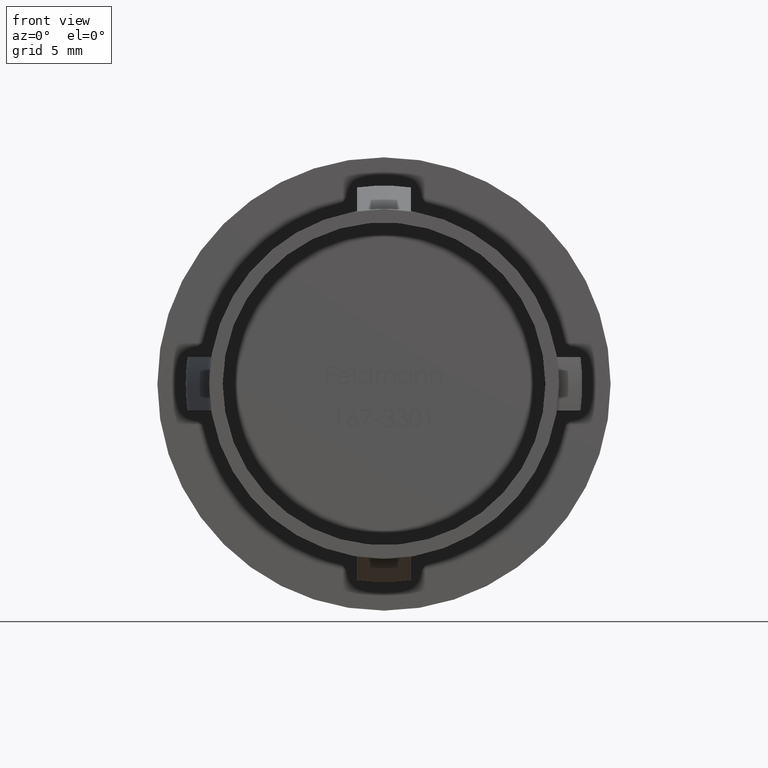
[diagram: clean part render]
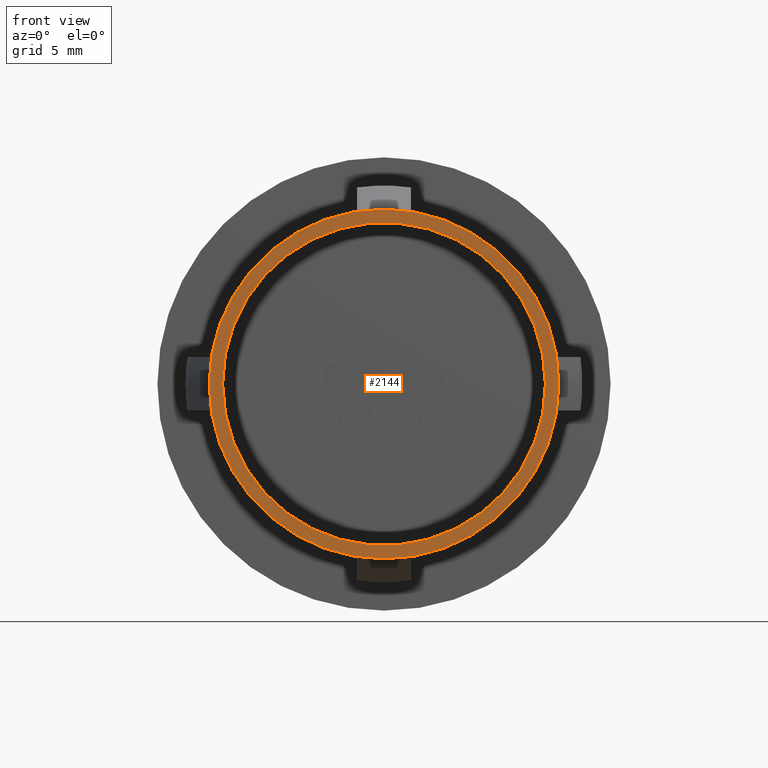
[diagram: same view with one face highlighted and labeled with its STEP entity id]
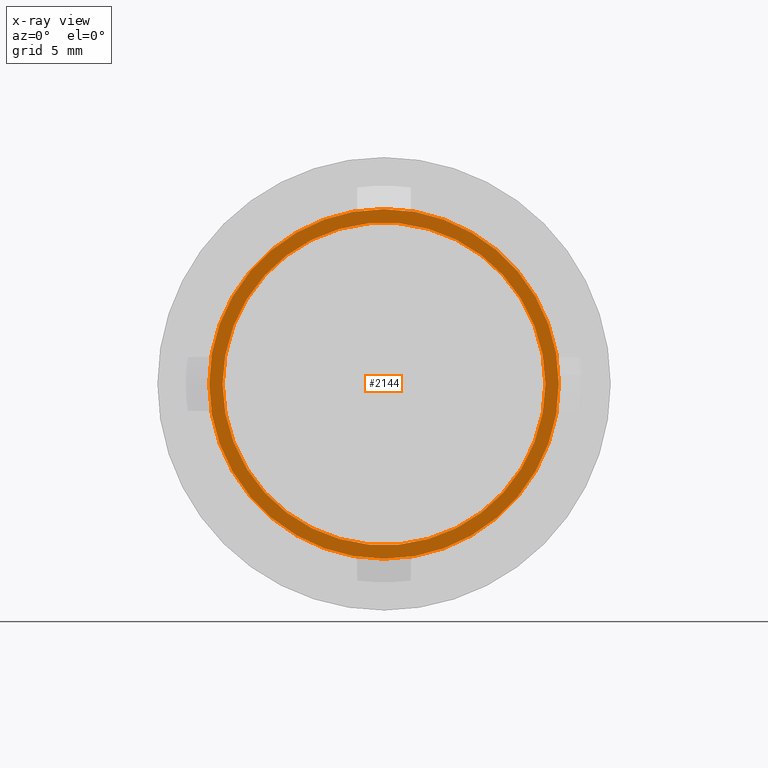
[diagram: x-ray of the same camera — body ghosted, the highlighted face saturated]
A machine part, front view. The second image highlights one B-rep face of the part: STEP entity #2144.
The next image is the same camera in x-ray: the body ghosted, the highlighted face saturated — about 0% of this face is hidden behind the body in this view.
In plain terms, the highlighted planar face has unit normal (0, 1, -0).
Its self-contained STEP definition (entity closure, byte-faithful):
#1415 = CIRCLE ( 'NONE', #8683, 12.00000000000000200 ) ;
#1520 = FACE_BOUND ( 'NONE', #13751, .T. ) ;
#2144 = ADVANCED_FACE ( 'NONE', ( #1520, #14228 ), #11221, .F. ) ;
#2170 = ORIENTED_EDGE ( 'NONE', *, *, #3285, .T. ) ;
#2950 = CIRCLE ( 'NONE', #12013, 13.00000000000000500 ) ;
#2972 = EDGE_CURVE ( 'NONE', #8384, #11530, #1415, .T. ) ;
#2994 = VERTEX_POINT ( 'NONE', #14287 ) ;
#3285 = EDGE_CURVE ( 'NONE', #11530, #8384, #4744, .T. ) ;
#3843 = CIRCLE ( 'NONE', #12502, 13.00000000000000500 ) ;
#4030 = ORIENTED_EDGE ( 'NONE', *, *, #8548, .F. ) ;
#4650 = CARTESIAN_POINT ( 'NONE',  ( -12.00000000000000400, 8.817456953860946200E-016, 0.0000000000000000000 ) ) ;
#4744 = CIRCLE ( 'NONE', #12193, 12.00000000000000200 ) ;
#5148 = DIRECTION ( 'NONE',  ( 7.347880794884120200E-017, 1.000000000000000000, -0.0000000000000000000 ) ) ;
#5301 = CARTESIAN_POINT ( 'NONE',  ( -1.557750728515433000E-015, 0.0000000000000000000, 0.0000000000000000000 ) ) ;
#5651 = DIRECTION ( 'NONE',  ( -1.000000000000000000, 7.347880794884120200E-017, 0.0000000000000000000 ) ) ;
#6242 = DIRECTION ( 'NONE',  ( -1.000000000000000000, 7.347880794884120200E-017, 0.0000000000000000000 ) ) ;
#7142 = CARTESIAN_POINT ( 'NONE',  ( 12.00000000000000000, -8.817456953860946200E-016, 1.469576158976823900E-015 ) ) ;
#7279 = CARTESIAN_POINT ( 'NONE',  ( -1.557750728515433000E-015, 0.0000000000000000000, 0.0000000000000000000 ) ) ;
#7624 = VERTEX_POINT ( 'NONE', #12892 ) ;
#7735 = DIRECTION ( 'NONE',  ( 7.347880794884120200E-017, 1.000000000000000000, -0.0000000000000000000 ) ) ;
#8384 = VERTEX_POINT ( 'NONE', #7142 ) ;
#8408 = DIRECTION ( 'NONE',  ( 7.347880794884120200E-017, 1.000000000000000000, -0.0000000000000000000 ) ) ;
#8548 = EDGE_CURVE ( 'NONE', #7624, #2994, #3843, .T. ) ;
#8683 = AXIS2_PLACEMENT_3D ( 'NONE', #5301, #7735, #9744 ) ;
#9079 = DIRECTION ( 'NONE',  ( -1.000000000000000000, 7.347880794884120200E-017, 0.0000000000000000000 ) ) ;
#9571 = EDGE_CURVE ( 'NONE', #2994, #7624, #2950, .T. ) ;
#9744 = DIRECTION ( 'NONE',  ( -1.000000000000000000, 7.347880794884120200E-017, 0.0000000000000000000 ) ) ;
#10121 = CARTESIAN_POINT ( 'NONE',  ( -1.557750728515433000E-015, 0.0000000000000000000, 0.0000000000000000000 ) ) ;
#10137 = DIRECTION ( 'NONE',  ( 7.347880794884120200E-017, 1.000000000000000000, -0.0000000000000000000 ) ) ;
#10655 = EDGE_LOOP ( 'NONE', ( #12710, #4030 ) ) ;
#10828 = CARTESIAN_POINT ( 'NONE',  ( -1.557750728515433000E-015, 0.0000000000000000000, 0.0000000000000000000 ) ) ;
#11221 = PLANE ( 'NONE',  #11898 ) ;
#11254 = DIRECTION ( 'NONE',  ( 7.347880794884120200E-017, 1.000000000000000000, -0.0000000000000000000 ) ) ;
#11530 = VERTEX_POINT ( 'NONE', #4650 ) ;
#11898 = AXIS2_PLACEMENT_3D ( 'NONE', #13488, #10137, #5651 ) ;
#12013 = AXIS2_PLACEMENT_3D ( 'NONE', #10828, #5148, #6242 ) ;
#12193 = AXIS2_PLACEMENT_3D ( 'NONE', #10121, #11254, #9079 ) ;
#12502 = AXIS2_PLACEMENT_3D ( 'NONE', #7279, #8408, #12959 ) ;
#12710 = ORIENTED_EDGE ( 'NONE', *, *, #9571, .F. ) ;
#12892 = CARTESIAN_POINT ( 'NONE',  ( 13.00000000000000400, -9.552245033349360500E-016, 1.592040838891559700E-015 ) ) ;
#12959 = DIRECTION ( 'NONE',  ( -1.000000000000000000, 7.347880794884120200E-017, 0.0000000000000000000 ) ) ;
#13488 = CARTESIAN_POINT ( 'NONE',  ( 12.00000000000000000, 3.673940397442063200E-017, 0.0000000000000000000 ) ) ;
#13647 = ORIENTED_EDGE ( 'NONE', *, *, #2972, .T. ) ;
#13751 = EDGE_LOOP ( 'NONE', ( #2170, #13647 ) ) ;
#14228 = FACE_OUTER_BOUND ( 'NONE', #10655, .T. ) ;
#14287 = CARTESIAN_POINT ( 'NONE',  ( -13.00000000000000700, 9.552245033349360500E-016, 0.0000000000000000000 ) ) ;